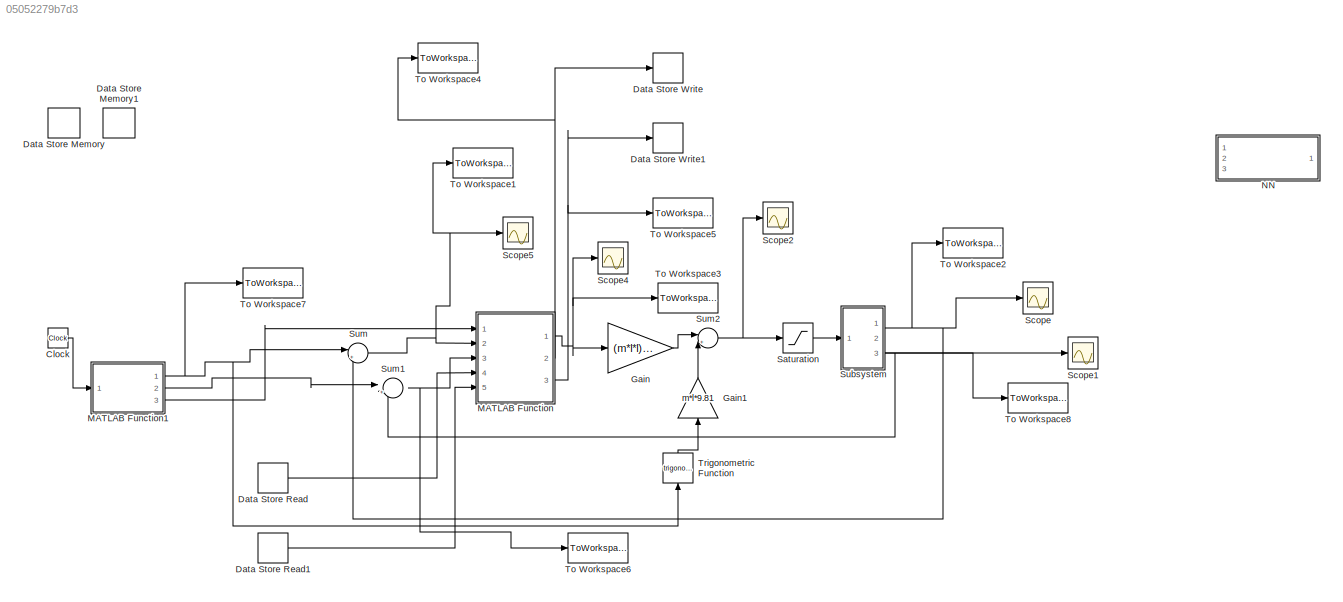
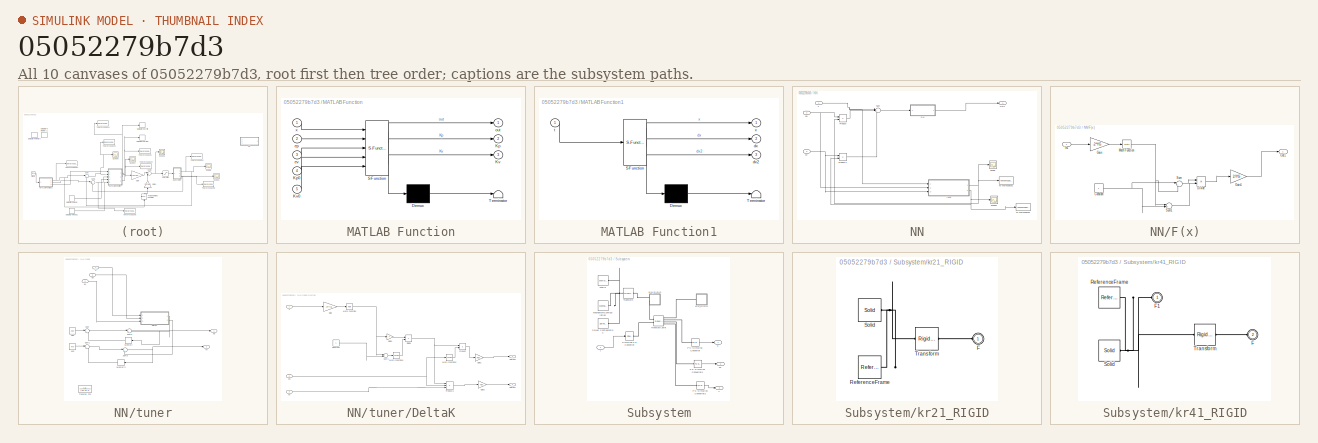
[diagram: thumbnail index - all 10 canvases of the model, root first then tree order]
MODEL slx_05052279b7d3
KIND model
CONFIG AbsTol = auto
CONFIG FixedStep = auto
CONFIG MaxStep = auto
CONFIG MinStep = auto
CONFIG RelTol = 1e-3
CONFIG SampleTimeConstraint = Unconstrained
CONFIG Solver = ode45
CONFIG SolverMode = Auto
CONFIG SolverName = ode45
CONFIG StartTime = 0.0
CONFIG StopTime = 26
BLOCK [Clock] Clock
BLOCK [DataStoreMemory] Data Store Memory
  DataStoreName = Kp
  InitialValue = 2.5*10^4
  ReadBeforeWriteMsg = warning
  WriteAfterReadMsg = warning
  WriteAfterWriteMsg = warning
BLOCK [DataStoreMemory] Data Store Memory1
  DataStoreName = Kv
  InitialValue = 625
  ReadBeforeWriteMsg = warning
  WriteAfterReadMsg = warning
  WriteAfterWriteMsg = warning
BLOCK [DataStoreRead] Data Store Read
  DataStoreName = Kp
  Ports = [0, 1]
BLOCK [DataStoreRead] Data Store Read1
  DataStoreName = Kv
  Ports = [0, 1]
BLOCK [DataStoreWrite] Data Store Write
  DataStoreName = Kp
  Ports = [1]
BLOCK [DataStoreWrite] Data Store Write1
  DataStoreName = Kv
  Ports = [1]
BLOCK [Gain] Gain
  Gain = (m*l*l)/3
  OutDataTypeStr = Inherit: Inherit via internal rule
  ParamDataTypeStr = Inherit: Inherit via internal rule
  SaturateOnIntegerOverflow = off
BLOCK [Gain] Gain1
  Gain = m*l*9.81
  OutDataTypeStr = Inherit: Inherit via internal rule
  ParamDataTypeStr = Inherit: Inherit via internal rule
  SaturateOnIntegerOverflow = off
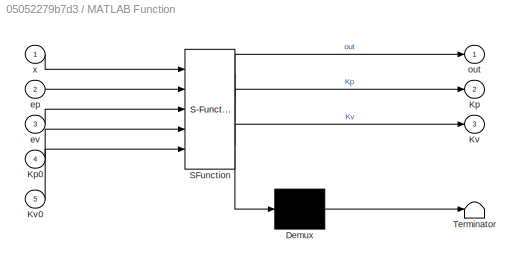
BLOCK [SubSystem] MATLAB Function
  ErrorFcn = Stateflow.Translate.translate
  PermitHierarchicalResolution = ExplicitOnly
  Ports = [5, 3]
  RequestExecContextInheritance = off
  SFBlockType = MATLAB Function
  TreatAsAtomicUnit = on
BLOCK [Demux] MATLAB Function/ Demux 
  Outputs = 1
  Ports = [1, 1]
BLOCK [S-Function] MATLAB Function/ SFunction 
  EnableBusSupport = on
  FunctionName = sf_sfun
  PortCounts = [5 4]
  Ports = [5, 4]
  Tag = Stateflow S-Function mm 2
BLOCK [Terminator] MATLAB Function/ Terminator 
BLOCK [Outport] MATLAB Function/Kp
  IconDisplay = Port number
  Port = 2
BLOCK [Inport] MATLAB Function/Kp0
  IconDisplay = Port number
  Port = 4
BLOCK [Outport] MATLAB Function/Kv
  IconDisplay = Port number
  Port = 3
BLOCK [Inport] MATLAB Function/Kv0
  IconDisplay = Port number
  Port = 5
BLOCK [Inport] MATLAB Function/ep
  IconDisplay = Port number
  Port = 2
BLOCK [Inport] MATLAB Function/ev
  IconDisplay = Port number
  Port = 3
BLOCK [Outport] MATLAB Function/out
  IconDisplay = Port number
BLOCK [Inport] MATLAB Function/x
  IconDisplay = Port number
BLOCK [SubSystem] MATLAB Function1
  ErrorFcn = Stateflow.Translate.translate
  PermitHierarchicalResolution = ExplicitOnly
  Ports = [1, 3]
  RequestExecContextInheritance = off
  SFBlockType = MATLAB Function
  TreatAsAtomicUnit = on
BLOCK [Demux] MATLAB Function1/ Demux 
  Outputs = 1
  Ports = [1, 1]
BLOCK [S-Function] MATLAB Function1/ SFunction 
  EnableBusSupport = on
  FunctionName = sf_sfun
  PortCounts = [1 4]
  Ports = [1, 4]
  Tag = Stateflow S-Function mm 1
BLOCK [Terminator] MATLAB Function1/ Terminator 
BLOCK [Outport] MATLAB Function1/dx
  IconDisplay = Port number
  Port = 2
BLOCK [Outport] MATLAB Function1/dx2
  IconDisplay = Port number
  Port = 3
BLOCK [Inport] MATLAB Function1/t
  IconDisplay = Port number
BLOCK [Outport] MATLAB Function1/x
  IconDisplay = Port number
BLOCK [SubSystem] NN
  Commented = on
  Ports = [3, 1]
  RequestExecContextInheritance = off
BLOCK [SubSystem] NN/F(x)
  Ports = [1, 1]
  RequestExecContextInheritance = off
BLOCK [Constant] NN/F(x)/Constant
BLOCK [Product] NN/F(x)/Divide
  InputSameDT = off
  Inputs = */
  OutDataTypeStr = Inherit: Inherit via internal rule
  Ports = [2, 1]
  RndMeth = Floor
  SaturateOnIntegerOverflow = off
BLOCK [Gain] NN/F(x)/Gain
  Gain = -2*YG
  OutDataTypeStr = Inherit: Inherit via internal rule
  ParamDataTypeStr = Inherit: Inherit via internal rule
  SaturateOnIntegerOverflow = off
BLOCK [Gain] NN/F(x)/Gain1
  Gain = 2/YG
  OutDataTypeStr = Inherit: Inherit via internal rule
  ParamDataTypeStr = Inherit: Inherit via internal rule
  SaturateOnIntegerOverflow = off
BLOCK [Inport] NN/F(x)/In1
  IconDisplay = Port number
BLOCK [Math] NN/F(x)/Math Function
  Ports = [1, 1]
BLOCK [Outport] NN/F(x)/Out1
  IconDisplay = Port number
BLOCK [Sum] NN/F(x)/Sum
  IconShape = round
  InputSameDT = off
  Inputs = |+-
  OutDataTypeStr = Inherit: Inherit via internal rule
  Ports = [2, 1]
  SaturateOnIntegerOverflow = off
BLOCK [Sum] NN/F(x)/Sum1
  IconShape = round
  InputSameDT = off
  Inputs = |++
  OutDataTypeStr = Inherit: Inherit via internal rule
  Ports = [2, 1]
  SaturateOnIntegerOverflow = off
BLOCK [Outport] NN/Out1
  IconDisplay = Port number
BLOCK [Product] NN/Product
  InputSameDT = off
  OutDataTypeStr = Inherit: Inherit via internal rule
  Ports = [2, 1]
  RndMeth = Floor
  SaturateOnIntegerOverflow = off
BLOCK [Product] NN/Product1
  InputSameDT = off
  OutDataTypeStr = Inherit: Inherit via internal rule
  Ports = [2, 1]
  RndMeth = Floor
  SaturateOnIntegerOverflow = off
BLOCK [Scope] NN/Scope
  Floating = off
  NumInputPorts = 1
  Ports = [1]
  SaveName = ScopeData4
  YMax = 5.5e+06
  YMin = 1e+06
BLOCK [Scope] NN/Scope1
  Floating = off
  NumInputPorts = 1
  Ports = [1]
  SaveName = ScopeData5
  YMax = 1.095e+07
  YMin = 1.03e+07
BLOCK [Sum] NN/Sum
  IconShape = round
  InputSameDT = off
  Inputs = |+++
  OutDataTypeStr = Inherit: Inherit via internal rule
  Ports = [3, 1]
  SaturateOnIntegerOverflow = off
BLOCK [ToWorkspace] NN/To Workspace1
  FixptAsFi = on
  MaxDataPoints = inf
  Ports = [1]
  SampleTime = -1
  Save2DSignal = 3-D array (concatenate along third dimension)
  SaveFormat = Timeseries
  VariableName = Kp
BLOCK [ToWorkspace] NN/To Workspace2
  FixptAsFi = on
  MaxDataPoints = inf
  Ports = [1]
  SampleTime = -1
  Save2DSignal = 3-D array (concatenate along third dimension)
  SaveFormat = Timeseries
  VariableName = Kv
BLOCK [Inport] NN/ep
  IconDisplay = Port number
  Port = 2
BLOCK [Inport] NN/ev
  IconDisplay = Port number
  Port = 3
BLOCK [SubSystem] NN/tuner
  Ports = [3, 2]
  RequestExecContextInheritance = off
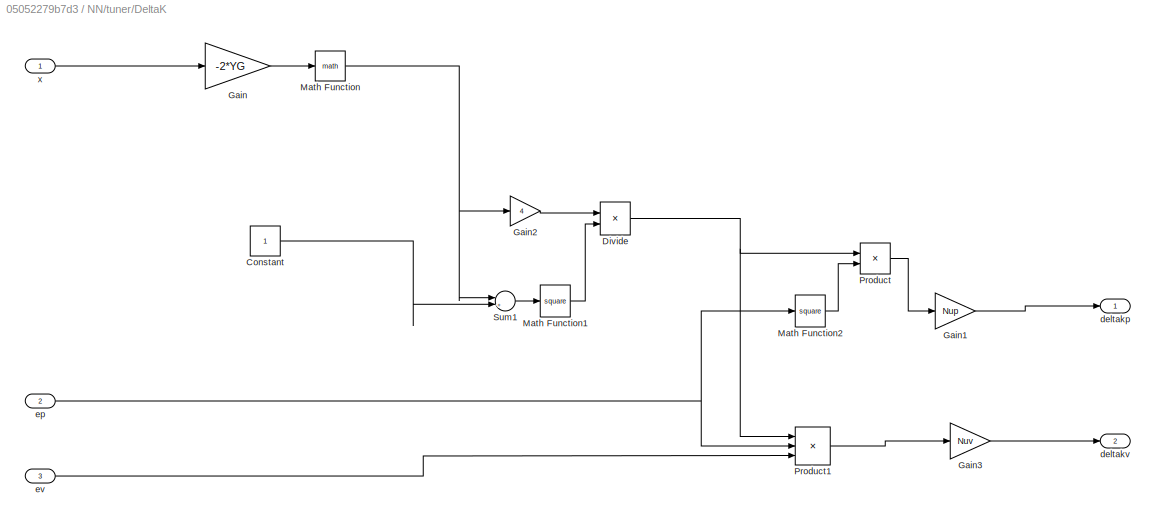
BLOCK [SubSystem] NN/tuner/DeltaK
  Ports = [3, 2]
  RequestExecContextInheritance = off
BLOCK [Constant] NN/tuner/DeltaK/Constant
BLOCK [Product] NN/tuner/DeltaK/Divide
  InputSameDT = off
  Inputs = */
  OutDataTypeStr = Inherit: Inherit via internal rule
  Ports = [2, 1]
  RndMeth = Floor
  SaturateOnIntegerOverflow = off
BLOCK [Gain] NN/tuner/DeltaK/Gain
  Gain = -2*YG
  OutDataTypeStr = Inherit: Inherit via internal rule
  ParamDataTypeStr = Inherit: Inherit via internal rule
  SaturateOnIntegerOverflow = off
BLOCK [Gain] NN/tuner/DeltaK/Gain1
  Gain = Nup
  OutDataTypeStr = Inherit: Inherit via internal rule
  ParamDataTypeStr = Inherit: Inherit via internal rule
  SaturateOnIntegerOverflow = off
BLOCK [Gain] NN/tuner/DeltaK/Gain2
  Gain = 4
  OutDataTypeStr = Inherit: Inherit via internal rule
  ParamDataTypeStr = Inherit: Inherit via internal rule
  SaturateOnIntegerOverflow = off
BLOCK [Gain] NN/tuner/DeltaK/Gain3
  Gain = Nuv
  OutDataTypeStr = Inherit: Inherit via internal rule
  ParamDataTypeStr = Inherit: Inherit via internal rule
  SaturateOnIntegerOverflow = off
BLOCK [Math] NN/tuner/DeltaK/Math Function
  OutputSignalType = real
  Ports = [1, 1]
BLOCK [Math] NN/tuner/DeltaK/Math Function1
  Operator = square
  OutputSignalType = real
  Ports = [1, 1]
BLOCK [Math] NN/tuner/DeltaK/Math Function2
  Operator = square
  OutputSignalType = real
  Ports = [1, 1]
BLOCK [Product] NN/tuner/DeltaK/Product
  InputSameDT = off
  OutDataTypeStr = Inherit: Inherit via internal rule
  Ports = [2, 1]
  RndMeth = Floor
  SaturateOnIntegerOverflow = off
BLOCK [Product] NN/tuner/DeltaK/Product1
  InputSameDT = off
  Inputs = 3
  OutDataTypeStr = Inherit: Inherit via internal rule
  Ports = [3, 1]
  RndMeth = Floor
  SaturateOnIntegerOverflow = off
BLOCK [Sum] NN/tuner/DeltaK/Sum1
  IconShape = round
  InputSameDT = off
  Inputs = |++
  OutDataTypeStr = Inherit: Inherit via internal rule
  Ports = [2, 1]
  SaturateOnIntegerOverflow = off
BLOCK [Outport] NN/tuner/DeltaK/deltakp
  IconDisplay = Port number
BLOCK [Outport] NN/tuner/DeltaK/deltakv 
  IconDisplay = Port number
  Port = 2
BLOCK [Inport] NN/tuner/DeltaK/ep
  IconDisplay = Port number
  Port = 2
BLOCK [Inport] NN/tuner/DeltaK/ev
  IconDisplay = Port number
  Port = 3
BLOCK [Inport] NN/tuner/DeltaK/x
  IconDisplay = Port number
BLOCK [Constant] NN/tuner/Kp0
  Value = Kp0
BLOCK [Constant] NN/tuner/Kv0
  Value = Kv0
BLOCK [Memory] NN/tuner/Memory
BLOCK [Memory] NN/tuner/Memory1
BLOCK [Sum] NN/tuner/Sum
  IconShape = round
  InputSameDT = off
  Inputs = |++
  OutDataTypeStr = Inherit: Inherit via internal rule
  Ports = [2, 1]
  SaturateOnIntegerOverflow = off
BLOCK [Sum] NN/tuner/Sum1
  IconShape = round
  InputSameDT = off
  Inputs = |++
  OutDataTypeStr = Inherit: Inherit via internal rule
  Ports = [2, 1]
  SaturateOnIntegerOverflow = off
BLOCK [Sum] NN/tuner/Sum2
  IconShape = round
  InputSameDT = off
  Inputs = |++
  OutDataTypeStr = Inherit: Inherit via internal rule
  Ports = [2, 1]
  SaturateOnIntegerOverflow = off
BLOCK [Sum] NN/tuner/Sum3
  IconShape = round
  InputSameDT = off
  Inputs = |++
  OutDataTypeStr = Inherit: Inherit via internal rule
  Ports = [2, 1]
  SaturateOnIntegerOverflow = off
BLOCK [TransferFcn] NN/tuner/Transfer Fcn
  Commented = on
  Denominator = [1e-10 1]
BLOCK [Inport] NN/tuner/ep
  IconDisplay = Port number
  Port = 2
BLOCK [Inport] NN/tuner/ev
  IconDisplay = Port number
  Port = 3
BLOCK [Outport] NN/tuner/kp
  IconDisplay = Port number
BLOCK [Outport] NN/tuner/kv
  IconDisplay = Port number
  Port = 2
BLOCK [Inport] NN/tuner/x
  IconDisplay = Port number
BLOCK [Inport] NN/x
  IconDisplay = Port number
BLOCK [Saturate] Saturation
  InputPortMap = u0
  LowerLimit = -10
  Ports = [1, 1]
  UpperLimit = 10
BLOCK [Scope] Scope
  Floating = off
  NumInputPorts = 1
  Ports = [1]
  YMax = 0.275
  YMin = 0.05
BLOCK [Scope] Scope1
  Floating = off
  NumInputPorts = 1
  Ports = [1]
  SaveName = ScopeData1
BLOCK [Scope] Scope2
  Floating = off
  NumInputPorts = 1
  Ports = [1]
  SaveName = ScopeData2
  YMax = 0.00105
  YMin = 0.0003
BLOCK [Scope] Scope4
  Floating = off
  NumInputPorts = 1
  Ports = [1]
  SaveName = ScopeData6
  YMax = 5.25
  YMin = 4.75
BLOCK [Scope] Scope5
  Floating = off
  NumInputPorts = 1
  Ports = [1]
  SaveName = ScopeData7
  YMax = 0.0033
  YMin = 0.00275
BLOCK [SubSystem] Subsystem
  Ports = [1, 3]
  RequestExecContextInheritance = off
BLOCK [Reference] Subsystem/MechanismConfiguration  REF=sm_lib/Utilities/Mechanism
Configuration
  BlockFunction = simmechanics.library.utilities.mechanism_configuration
  ClassName = MechanismConfiguration
  GravityUnits = m/s^2
  GravityVector = [0 -9.81 0]
  LinearizationDelta = 0.001
  LogSimulationData = off
  Ports = [0, 0, 0, 0, 0, 0, 1]
  SourceBlock = sm_lib/Utilities/Mechanism\nConfiguration
  SourceType = Mechanism\nConfiguration
  UniformGravity = Constant
BLOCK [Reference] Subsystem/PS-Simulink Converter  REF=nesl_utility/PS-Simulink
Converter
  AffineConversion = off
  Frequencies = []
  LeftPortType = input
  PhysicalDomain = network_engine_domain
  Ports = [0, 1, 0, 0, 0, 1]
  PseudoPeriodic = off
  RightPortType = output
  SourceBlock = nesl_utility/PS-Simulink\nConverter
  SourceType = PS-Simulink\nConverter
  SubClassName = ps_output
  Unit = rad
BLOCK [Reference] Subsystem/PS-Simulink Converter1  REF=nesl_utility/PS-Simulink
Converter
  AffineConversion = off
  Frequencies = []
  LeftPortType = input
  PhysicalDomain = network_engine_domain
  Ports = [0, 1, 0, 0, 0, 1]
  PseudoPeriodic = off
  RightPortType = output
  SourceBlock = nesl_utility/PS-Simulink\nConverter
  SourceType = PS-Simulink\nConverter
  SubClassName = ps_output
  Unit = rad/s
BLOCK [Reference] Subsystem/PS-Simulink Converter2  REF=nesl_utility/PS-Simulink
Converter
  AffineConversion = off
  Frequencies = []
  LeftPortType = input
  PhysicalDomain = network_engine_domain
  Ports = [0, 1, 0, 0, 0, 1]
  PseudoPeriodic = off
  RightPortType = output
  SourceBlock = nesl_utility/PS-Simulink\nConverter
  SourceType = PS-Simulink\nConverter
  SubClassName = ps_output
  Unit = N*m
BLOCK [Reference] Subsystem/Revolute Joint  REF=sm_lib/Joints/Revolute Joint
  BlockFunction = simmechanics.library.joints.revolute_joint
  ClassName = RevoluteJoint
  CompositeWrenchDir = FollowerOnBase
  CompositeWrenchFrame = BaseFrame
  DampingCoefficient = 0
  DampingCoefficientUnits = N*m/(deg/s)
  EquilibriumPosition = 0
  EquilibriumPositionUnits = deg
  LogSimulationData = off
  MotionActuationMode = ComputedMotion
  Ports = [0, 0, 0, 0, 0, 2, 4]
  PositionTargetPriority = High
  PositionTargetSpecify = off
  PositionTargetValue = 0
  PositionTargetValueUnits = deg
  SenseAcceleration = off
  SenseConstraintForce = off
  SenseConstraintForceX = off
  SenseConstraintForceY = off
  SenseConstraintForceZ = off
  SenseConstraintTorque = off
  SenseConstraintTorqueX = off
  SenseConstraintTorqueY = off
  SenseConstraintTorqueZ = off
  SensePosition = on
  SenseTorqueForce = on
  SenseTotalForce = off
  SenseTotalForceX = off
  SenseTotalForceY = off
  SenseTotalForceZ = off
  SenseTotalTorque = off
  SenseTotalTorqueX = off
  SenseTotalTorqueY = off
  SenseTotalTorqueZ = off
  SenseVelocity = on
  SourceBlock = sm_lib/Joints/Revolute Joint
  SourceType = Revolute Joint
  SpringStiffness = 0
  SpringStiffnessUnits = N*m/deg
  TorqueActuationMode = InputTorque
  VelocityTargetPriority = High
  VelocityTargetSpecify = off
  VelocityTargetValue = 0
  VelocityTargetValueUnits = deg/s
BLOCK [Reference] Subsystem/Simulink-PS Converter  REF=nesl_utility/Simulink-PS
Converter
  AffineConversion = off
  Frequencies = []
  InputFilterTimeConstant = 0.001
  InputFiltering = on
  LeftPortType = input
  NoiseDistribution = none
  NoiseParameters = []
  PhysicalDomain = network_engine_domain
  Ports = [1, 0, 0, 0, 0, 0, 1]
  PseudoPeriodic = off
  RightPortType = output
  SimscapeFilterOrder = 1
  SourceBlock = nesl_utility/Simulink-PS\nConverter
  SourceType = Simulink-PS\nConverter
  SubClassName = ps_input
  UdotUserProvided = 1
  Unit = N*m
BLOCK [Reference] Subsystem/Solver Configuration  REF=nesl_utility/Solver
Configuration
  AbsTol = 1e-06
  Accelerate = off
  AutomaticFiltering = off
  DelaysMemoryBudget = 1024
  DoDC = off
  DoFixedCost = off
  EnableSwitchedLinearOptims = on
  FilteringTimeConstant = 0.00001
  FrequencyDomain = off
  Harmonics = []
  LeftPortType = input
  LinearAlgebra = Sparse
  LocalSolverChoice = NE_BACKWARD_EULER_ADVANCER
  LocalSolverSampleTime = 1e-6
  MaxModeIter = 2
  MaxNonlinIter = 7
  MinStep = 1e-09
  NumHomotopyIterations = 100
  PhysicalDomain = network_engine_domain
  Ports = [0, 0, 0, 0, 0, 0, 1]
  Profile = off
  RelTol = 0.001
  ResidualTolerance = 1e-04
  RevertToSquareIcSolve = off
  RightPortType = generic
  SimulateNoise = off
  SourceBlock = nesl_utility/Solver\nConfiguration
  SourceType = Solver\nConfiguration
  SubClassName = solver
  ToWorkspace = off
  Tones = []
  UseCCode = off
  UseLocalSampling = off
  UseLocalSolver = off
BLOCK [Outport] Subsystem/T
  IconDisplay = Port number
  Port = 3
BLOCK [Reference] Subsystem/Transform  REF=sm_lib/Frames and
Transforms/Rigid
Transform
  BaseAlignAxisA = +Y
  BaseAlignAxisB = +Z
  BlockFunction = simmechanics.library.frames_transforms.rigid_transform
  ClassName = RigidTransform
  FollAlignAxisA = +X
  FollAlignAxisB = +Y
  LogSimulationData = off
  Ports = [0, 0, 0, 0, 0, 1, 1]
  RotationAngle = 0.0
  RotationAngleUnits = deg
  RotationArbitraryAxis = [0 0 1]
  RotationMatrix = [1 0 0; 0 1 0; 0 0 1]
  RotationMethod = None
  RotationStandardAxis = +Z
  SourceBlock = sm_lib/Frames and\nTransforms/Rigid\nTransform
  SourceType = Rigid\nTransform
  TranslationCartesianOffset = [-2.8703703553210151 -7.1296295233898714 -2.2204460492503131e-15]
  TranslationLengthUnit = mm
  TranslationMethod = Cartesian
  TranslationROffset = 0
  TranslationROffsetUnits = m
  TranslationStandardAxis = +Z
  TranslationStandardOffset = 0
  TranslationThetaOffset = 0
  TranslationThetaOffsetUnits = deg
  TranslationZOffset = 0
  TranslationZOffsetUnits = m
BLOCK [Reference] Subsystem/World  REF=sm_lib/Frames and
Transforms/World Frame
  BlockFunction = simmechanics.library.frames_transforms.world_frame
  ClassName = WorldFrame
  LogSimulationData = off
  Ports = [0, 0, 0, 0, 0, 0, 1]
  SourceBlock = sm_lib/Frames and\nTransforms/World Frame
  SourceType = World Frame
BLOCK [SubSystem] Subsystem/kr21_RIGID
  Ports = [0, 0, 0, 0, 0, 1]
  RequestExecContextInheritance = off
BLOCK [PMIOPort] Subsystem/kr21_RIGID/F
  Port = 1
  Side = Left
BLOCK [Reference] Subsystem/kr21_RIGID/ReferenceFrame  REF=sm_lib/Frames and
Transforms/Reference
Frame
  BlockFunction = simmechanics.library.frames_transforms.reference_frame
  ClassName = ReferenceFrame
  LogSimulationData = off
  Ports = [0, 0, 0, 0, 0, 0, 1]
  SourceBlock = sm_lib/Frames and\nTransforms/Reference\nFrame
  SourceType = Reference\nFrame
BLOCK [Reference] Subsystem/kr21_RIGID/Solid  REF=sm_lib/Body Elements/Solid
  BlockFunction = simmechanics.library.body_elements.solid
  BrickDimensionUnits = m
  BrickDimensions = [1 1 1]
  CenterOfMass = [3.6247426023412925e-11 -1.4867689099020885e-14 0]
  CenterOfMassUnits = mm
  ClassName = Solid
  CylinderLength = 1
  CylinderLengthUnits = m
  CylinderRadius = 1
  CylinderRadiusUnits = m
  Density = 1000
  DensityBased = on
  DensityUnits = kg/(m^3)
  EllipsoidRadii = [1 1 1]
  EllipsoidRadiiUnits = m
  ExtGeomFileName = kr2_ipt_1247a2ad.STL
  ExtGeomFileType = STL
  ExtGeomFileUnits = mm
  ExtrusionCrossSection = [1 1; -1 1; -1 -1; 1 -1]
  ExtrusionCrossSectionUnits = m
  ExtrusionLength = 1
  ExtrusionLengthUnits = m
  GeometryShape = FromFile
  GraphicAmbientColor = [0.15 0.15 0.15 1.0]
  GraphicDiffuseColor = [0.74901960784313726 0.74901960784313726 0.74901960784313726]
  GraphicEmissiveColor = [0.0 0.0 0.0 1.0]
  GraphicOpacity = 1
  GraphicShininess = 75
  GraphicSpecularColor = [0.5 0.5 0.5 1.0]
  GraphicType = FromGeometry
  GraphicVisPropType = SimpleVisualProperties
  InertiaType = Custom
  LogSimulationData = off
  MarkerShape = Sphere
  MarkerSize = 10
  MarkerSizeUnits = m
  Mass = 0.30586283305884543
  MassUnits = kg
  MomentsOfInertia = [1016.7717054457498 83.249573818231923 1018.4578571149564]
  MomentsOfInertiaUnits = kg*mm^2
  PolygonNumSides = 3
  PolygonOuterRadius = 1
  PolygonOuterRadiusUnits = m
  Ports = [0, 0, 0, 0, 0, 0, 1]
  ProductsOfInertia = [-9.0949470177292829e-14 0 -2.728484105320433e-13]
  ProductsOfInertiaUnits = kg*mm^2
  RectangleSize = [1 1]
  RectangleSizeUnits = m
  RevolutionAngle = 180
  RevolutionAngleUnits = deg
  RevolutionCrossSection = [1 1; 1 -1; 2 -1; 2 1]
  RevolutionCrossSectionUnits = m
  RevolutionExtent = Full
  SourceBlock = sm_lib/Body Elements/Solid
  SourceType = Solid
  SphereRadius = 1
  SphereRadiusUnits = m
BLOCK [Reference] Subsystem/kr21_RIGID/Transform  REF=sm_lib/Frames and
Transforms/Rigid
Transform
  BaseAlignAxisA = +Y
  BaseAlignAxisB = +Z
  BlockFunction = simmechanics.library.frames_transforms.rigid_transform
  ClassName = RigidTransform
  FollAlignAxisA = +X
  FollAlignAxisB = +Y
  LogSimulationData = off
  Ports = [0, 0, 0, 0, 0, 1, 1]
  RotationAngle = 0
  RotationAngleUnits = rad
  RotationArbitraryAxis = [0 0 0]
  RotationMatrix = [1 0 0; 0 1 0; 0 0 1]
  RotationMethod = ArbitraryAxis
  RotationStandardAxis = +Z
  SourceBlock = sm_lib/Frames and\nTransforms/Rigid\nTransform
  SourceType = Rigid\nTransform
  TranslationCartesianOffset = [1.1102230246251565e-15 -80.000000000000213 0]
  TranslationLengthUnit = mm
  TranslationMethod = Cartesian
  TranslationROffset = 0
  TranslationROffsetUnits = m
  TranslationStandardAxis = +Z
  TranslationStandardOffset = 0
  TranslationThetaOffset = 0
  TranslationThetaOffsetUnits = deg
  TranslationZOffset = 0
  TranslationZOffsetUnits = m
BLOCK [SubSystem] Subsystem/kr41_RIGID
  Ports = [0, 0, 0, 0, 0, 2]
  RequestExecContextInheritance = off
BLOCK [PMIOPort] Subsystem/kr41_RIGID/F
  Port = 2
  Side = Left
BLOCK [PMIOPort] Subsystem/kr41_RIGID/F1
  Port = 1
  Side = Left
BLOCK [Reference] Subsystem/kr41_RIGID/ReferenceFrame  REF=sm_lib/Frames and
Transforms/Reference
Frame
  BlockFunction = simmechanics.library.frames_transforms.reference_frame
  ClassName = ReferenceFrame
  LogSimulationData = off
  Ports = [0, 0, 0, 0, 0, 0, 1]
  SourceBlock = sm_lib/Frames and\nTransforms/Reference\nFrame
  SourceType = Reference\nFrame
BLOCK [Reference] Subsystem/kr41_RIGID/Solid  REF=sm_lib/Body Elements/Solid
  BlockFunction = simmechanics.library.body_elements.solid
  BrickDimensionUnits = m
  BrickDimensions = [1 1 1]
  CenterOfMass = [4.0482822334017741e-11 0 0]
  CenterOfMassUnits = mm
  ClassName = Solid
  CylinderLength = 1
  CylinderLengthUnits = m
  CylinderRadius = 1
  CylinderRadiusUnits = m
  Density = 1000
  DensityBased = on
  DensityUnits = kg/(m^3)
  EllipsoidRadii = [1 1 1]
  EllipsoidRadiiUnits = m
  ExtGeomFileName = kr4_ipt_3bad97a.STL
  ExtGeomFileType = STL
  ExtGeomFileUnits = mm
  ExtrusionCrossSection = [1 1; -1 1; -1 -1; 1 -1]
  ExtrusionCrossSectionUnits = m
  ExtrusionLength = 1
  ExtrusionLengthUnits = m
  GeometryShape = FromFile
  GraphicAmbientColor = [0.15 0.15 0.15 1.0]
  GraphicDiffuseColor = [0.74901960784313726 0.74901960784313726 0.74901960784313726]
  GraphicEmissiveColor = [0.0 0.0 0.0 1.0]
  GraphicOpacity = 1
  GraphicShininess = 75
  GraphicSpecularColor = [0.5 0.5 0.5 1.0]
  GraphicType = FromGeometry
  GraphicVisPropType = SimpleVisualProperties
  InertiaType = Custom
  LogSimulationData = off
  MarkerShape = Sphere
  MarkerSize = 10
  MarkerSizeUnits = m
  Mass = 0.13693141652942267
  MassUnits = kg
  MomentsOfInertia = [61.358120268124317 61.358120242449267 86.201196102727565]
  MomentsOfInertiaUnits = kg*mm^2
  PolygonNumSides = 3
  PolygonOuterRadius = 1
  PolygonOuterRadiusUnits = m
  Ports = [0, 0, 0, 0, 0, 0, 1]
  ProductsOfInertia = [0 0 0]
  ProductsOfInertiaUnits = kg*mm^2
  RectangleSize = [1 1]
  RectangleSizeUnits = m
  RevolutionAngle = 180
  RevolutionAngleUnits = deg
  RevolutionCrossSection = [1 1; 1 -1; 2 -1; 2 1]
  RevolutionCrossSectionUnits = m
  RevolutionExtent = Full
  SourceBlock = sm_lib/Body Elements/Solid
  SourceType = Solid
  SphereRadius = 1
  SphereRadiusUnits = m
BLOCK [Reference] Subsystem/kr41_RIGID/Transform  REF=sm_lib/Frames and
Transforms/Rigid
Transform
  BaseAlignAxisA = +Y
  BaseAlignAxisB = +Z
  BlockFunction = simmechanics.library.frames_transforms.rigid_transform
  ClassName = RigidTransform
  FollAlignAxisA = +X
  FollAlignAxisB = +Y
  LogSimulationData = off
  Ports = [0, 0, 0, 0, 0, 1, 1]
  RotationAngle = 0.12768539142570112
  RotationAngleUnits = rad
  RotationArbitraryAxis = [-0 -0 -1]
  RotationMatrix = [1 0 0; 0 1 0; 0 0 1]
  RotationMethod = ArbitraryAxis
  RotationStandardAxis = +Z
  SourceBlock = sm_lib/Frames and\nTransforms/Rigid\nTransform
  SourceType = Rigid\nTransform
  TranslationCartesianOffset = [-1.1857181902996672e-13 -3.4994229736184934e-13 40]
  TranslationLengthUnit = mm
  TranslationMethod = Cartesian
  TranslationROffset = 0
  TranslationROffsetUnits = m
  TranslationStandardAxis = +Z
  TranslationStandardOffset = 0
  TranslationThetaOffset = 0
  TranslationThetaOffsetUnits = deg
  TranslationZOffset = 0
  TranslationZOffsetUnits = m
BLOCK [Outport] Subsystem/q
  IconDisplay = Port number
BLOCK [Outport] Subsystem/q1
  IconDisplay = Port number
  Port = 2
BLOCK [Inport] Subsystem/t
  IconDisplay = Port number
BLOCK [Sum] Sum
  IconShape = round
  InputSameDT = off
  Inputs = |+-
  OutDataTypeStr = Inherit: Inherit via internal rule
  Ports = [2, 1]
  SaturateOnIntegerOverflow = off
BLOCK [Sum] Sum1
  IconShape = round
  InputSameDT = off
  Inputs = |+-
  OutDataTypeStr = Inherit: Inherit via internal rule
  Ports = [2, 1]
  SaturateOnIntegerOverflow = off
BLOCK [Sum] Sum2
  IconShape = round
  InputSameDT = off
  Inputs = |+-
  OutDataTypeStr = Inherit: Inherit via internal rule
  Ports = [2, 1]
  SaturateOnIntegerOverflow = off
BLOCK [ToWorkspace] To Workspace1
  FixptAsFi = on
  MaxDataPoints = inf
  Ports = [1]
  SampleTime = -1
  Save2DSignal = 3-D array (concatenate along third dimension)
  SaveFormat = Timeseries
  VariableName = ep
BLOCK [ToWorkspace] To Workspace2
  FixptAsFi = on
  MaxDataPoints = inf
  Ports = [1]
  SampleTime = -1
  Save2DSignal = 3-D array (concatenate along third dimension)
  SaveFormat = Timeseries
  VariableName = q
BLOCK [ToWorkspace] To Workspace3
  FixptAsFi = on
  MaxDataPoints = inf
  Ports = [1]
  SampleTime = -1
  Save2DSignal = 3-D array (concatenate along third dimension)
  SaveFormat = Timeseries
  VariableName = out
BLOCK [ToWorkspace] To Workspace4
  FixptAsFi = on
  MaxDataPoints = inf
  Ports = [1]
  SampleTime = -1
  Save2DSignal = 3-D array (concatenate along third dimension)
  SaveFormat = Timeseries
  VariableName = Kp
BLOCK [ToWorkspace] To Workspace5
  FixptAsFi = on
  MaxDataPoints = inf
  Ports = [1]
  SampleTime = -1
  Save2DSignal = 3-D array (concatenate along third dimension)
  SaveFormat = Timeseries
  VariableName = Kv
BLOCK [ToWorkspace] To Workspace6
  FixptAsFi = on
  MaxDataPoints = inf
  Ports = [1]
  SampleTime = -1
  Save2DSignal = 3-D array (concatenate along third dimension)
  SaveFormat = Timeseries
  VariableName = ev
BLOCK [ToWorkspace] To Workspace7
  FixptAsFi = on
  MaxDataPoints = inf
  Ports = [1]
  SampleTime = -1
  Save2DSignal = 3-D array (concatenate along third dimension)
  SaveFormat = Timeseries
  VariableName = x
BLOCK [ToWorkspace] To Workspace8
  FixptAsFi = on
  MaxDataPoints = inf
  Ports = [1]
  SampleTime = -1
  Save2DSignal = 3-D array (concatenate along third dimension)
  SaveFormat = Timeseries
  VariableName = T
BLOCK [Trigonometry] Trigonometric Function
  Ports = [1, 1]
LINE Clock:1 -> MATLAB Function1:1
LINE Data Store Read1:1 -> MATLAB Function:5
LINE Data Store Read:1 -> MATLAB Function:4
LINE Gain1:1 -> Sum2:2
LINE Gain:1 -> Sum2:1
NET MATLAB Function1:1 -> Sum:1, To Workspace7:1, Trigonometric Function:1
LINE MATLAB Function1:2 -> Sum1:1
LINE MATLAB Function1:3 -> MATLAB Function:1
NET MATLAB Function:1 -> Gain:1, Scope4:1, To Workspace3:1
NET MATLAB Function:2 -> Data Store Write:1, To Workspace4:1
NET MATLAB Function:3 -> Data Store Write1:1, To Workspace5:1
NET NN/F(x)/Constant:1 -> NN/F(x)/Sum1:2, NN/F(x)/Sum:1
LINE NN/F(x)/Divide:1 -> NN/F(x)/Gain1:1
LINE NN/F(x)/Gain1:1 -> NN/F(x)/Out1:1
LINE NN/F(x)/Gain:1 -> NN/F(x)/Math Function:1
LINE NN/F(x)/In1:1 -> NN/F(x)/Gain:1
NET NN/F(x)/Math Function:1 -> NN/F(x)/Sum1:1, NN/F(x)/Sum:2
LINE NN/F(x)/Sum1:1 -> NN/F(x)/Divide:2
LINE NN/F(x)/Sum:1 -> NN/F(x)/Divide:1
LINE NN/F(x):1 -> NN/Out1:1
LINE NN/Product1:1 -> NN/Sum:3
LINE NN/Product:1 -> NN/Sum:2
LINE NN/Sum:1 -> NN/F(x):1
NET NN/ep:1 -> NN/Product:1, NN/tuner:2
NET NN/ev:1 -> NN/Product1:1, NN/tuner:3
LINE NN/tuner/DeltaK/Constant:1 -> NN/tuner/DeltaK/Sum1:2
NET NN/tuner/DeltaK/Divide:1 -> NN/tuner/DeltaK/Product1:1, NN/tuner/DeltaK/Product:1
LINE NN/tuner/DeltaK/Gain1:1 -> NN/tuner/DeltaK/deltakp:1
LINE NN/tuner/DeltaK/Gain2:1 -> NN/tuner/DeltaK/Divide:1
LINE NN/tuner/DeltaK/Gain3:1 -> NN/tuner/DeltaK/deltakv :1
LINE NN/tuner/DeltaK/Gain:1 -> NN/tuner/DeltaK/Math Function:1
LINE NN/tuner/DeltaK/Math Function1:1 -> NN/tuner/DeltaK/Divide:2
LINE NN/tuner/DeltaK/Math Function2:1 -> NN/tuner/DeltaK/Product:2
NET NN/tuner/DeltaK/Math Function:1 -> NN/tuner/DeltaK/Gain2:1, NN/tuner/DeltaK/Sum1:1
LINE NN/tuner/DeltaK/Product1:1 -> NN/tuner/DeltaK/Gain3:1
LINE NN/tuner/DeltaK/Product:1 -> NN/tuner/DeltaK/Gain1:1
LINE NN/tuner/DeltaK/Sum1:1 -> NN/tuner/DeltaK/Math Function1:1
NET NN/tuner/DeltaK/ep:1 -> NN/tuner/DeltaK/Math Function2:1, NN/tuner/DeltaK/Product1:2
LINE NN/tuner/DeltaK/ev:1 -> NN/tuner/DeltaK/Product1:3
LINE NN/tuner/DeltaK/x:1 -> NN/tuner/DeltaK/Gain:1
LINE NN/tuner/DeltaK:1 -> NN/tuner/Sum2:2
LINE NN/tuner/DeltaK:2 -> NN/tuner/Sum3:2
LINE NN/tuner/Kp0:1 -> NN/tuner/Sum:1
LINE NN/tuner/Kv0:1 -> NN/tuner/Sum1:1
LINE NN/tuner/Memory1:1 -> NN/tuner/Sum1:2
LINE NN/tuner/Memory:1 -> NN/tuner/Sum:2
LINE NN/tuner/Sum1:1 -> NN/tuner/Sum3:1
NET NN/tuner/Sum2:1 -> NN/tuner/Memory:1, NN/tuner/kp:1
NET NN/tuner/Sum3:1 -> NN/tuner/Memory1:1, NN/tuner/kv:1
LINE NN/tuner/Sum:1 -> NN/tuner/Sum2:1
LINE NN/tuner/ep:1 -> NN/tuner/DeltaK:2
LINE NN/tuner/ev:1 -> NN/tuner/DeltaK:3
LINE NN/tuner/x:1 -> NN/tuner/DeltaK:1
NET NN/tuner:1 -> NN/Product:2, NN/Scope:1, NN/To Workspace1:1
NET NN/tuner:2 -> NN/Product1:2, NN/Scope1:1, NN/To Workspace2:1
NET NN/x:1 -> NN/Sum:1, NN/tuner:1
LINE Saturation:1 -> Subsystem:1
LINE Subsystem/PS-Simulink Converter1:1 -> Subsystem/q1:1
LINE Subsystem/PS-Simulink Converter2:1 -> Subsystem/T:1
LINE Subsystem/PS-Simulink Converter:1 -> Subsystem/q:1
LINE Subsystem/t:1 -> Subsystem/Simulink-PS Converter:1
NET Subsystem:1 -> Scope:1, Sum:2, To Workspace2:1
NET Subsystem:2 -> Scope1:1, Sum1:2
LINE Subsystem:3 -> To Workspace8:1
NET Sum1:1 -> MATLAB Function:3, To Workspace6:1
NET Sum2:1 -> Saturation:1, Scope2:1
NET Sum:1 -> MATLAB Function:2, Scope5:1, To Workspace1:1
LINE Trigonometric Function:1 -> Gain1:1
PNET net1: Subsystem/MechanismConfiguration:RConn1 -- Subsystem/Solver Configuration:RConn1 -- Subsystem/Transform:LConn1 -- Subsystem/World:RConn1
PLINE Subsystem/PS-Simulink Converter1:LConn1 -- Subsystem/Revolute Joint:RConn3
PLINE Subsystem/PS-Simulink Converter2:LConn1 -- Subsystem/Revolute Joint:RConn4
PLINE Subsystem/PS-Simulink Converter:LConn1 -- Subsystem/Revolute Joint:RConn2
PLINE Subsystem/Revolute Joint:LConn1 -- Subsystem/kr41_RIGID:LConn2
PLINE Subsystem/Revolute Joint:LConn2 -- Subsystem/Simulink-PS Converter:RConn1
PLINE Subsystem/Revolute Joint:RConn1 -- Subsystem/kr21_RIGID:LConn1
PLINE Subsystem/Transform:RConn1 -- Subsystem/kr41_RIGID:LConn1
PLINE Subsystem/kr21_RIGID/F:RConn1 -- Subsystem/kr21_RIGID/Transform:RConn1
PNET net2: Subsystem/kr21_RIGID/ReferenceFrame:RConn1 -- Subsystem/kr21_RIGID/Solid:RConn1 -- Subsystem/kr21_RIGID/Transform:LConn1
PNET net3: Subsystem/kr41_RIGID/F1:RConn1 -- Subsystem/kr41_RIGID/ReferenceFrame:RConn1 -- Subsystem/kr41_RIGID/Solid:RConn1 -- Subsystem/kr41_RIGID/Transform:LConn1
PLINE Subsystem/kr41_RIGID/F:RConn1 -- Subsystem/kr41_RIGID/Transform:RConn1
note: NET lines group one-source signal fan-out (src -> all destinations, sorted); 1:1 wires keep LINE; PNET lines group multi-terminal physical nets as a canonical sorted terminal list (undirected conserving connections); 2-terminal nets keep the pairwise PLINE form
CHART MATLAB Function1 states=1 transitions=1
  STATE_LABEL 'eML_blk_kernel()'
  STATE_LABEL 'SCRIPT:\nfunction [x,dx,dx2] = fcn(t)\ndx = cos(t);\ndx2 = -sin(t);\nx = sin(t);\n'
CHART MATLAB Function states=1 transitions=1
  STATE_LABEL 'eML_blk_kernel()'
  STATE_LABEL 'SCRIPT:\nfunction [out,Kp,Kv] = NNPID(x,ep,ev, Kp0, Kv0)\nnup = 7*10^4;\nnuv = 100;\nYG = 0.8;\ndeltaKp = nup * ep^2 * ((4*exp(-2*x*YG))/(1 + exp(-2*x*YG))^2);\ndeltaKv = nuv * ep * ev * ((4*exp(-2*x*YG))/(1 + exp(-2*x*YG))^2);\nout = x + Kp0*ep + Kv0*ev;\nKp = Kp0 + deltaKp;\nKv = Kv0 + deltaKv;\n'
